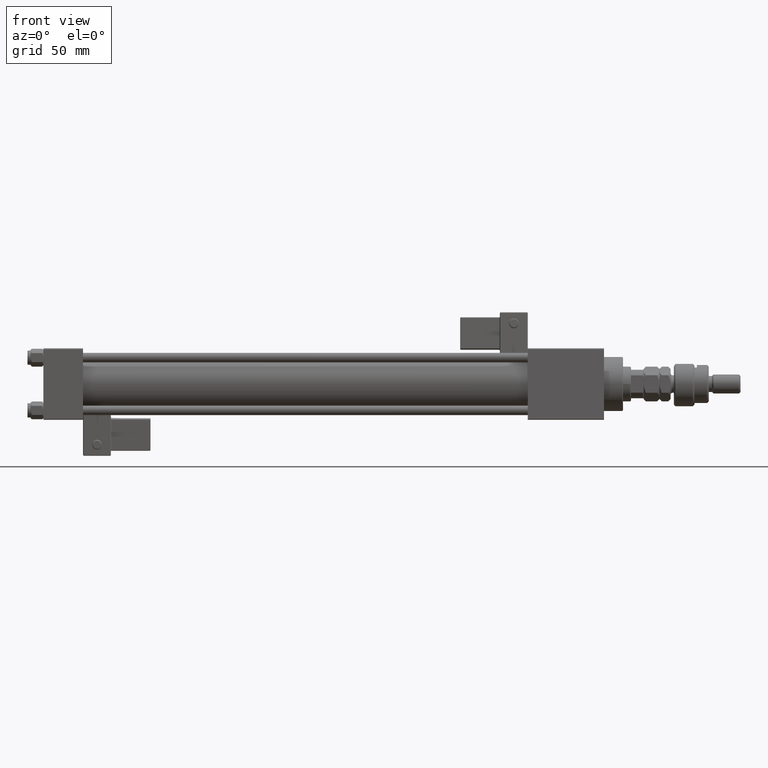
[diagram: clean part render]
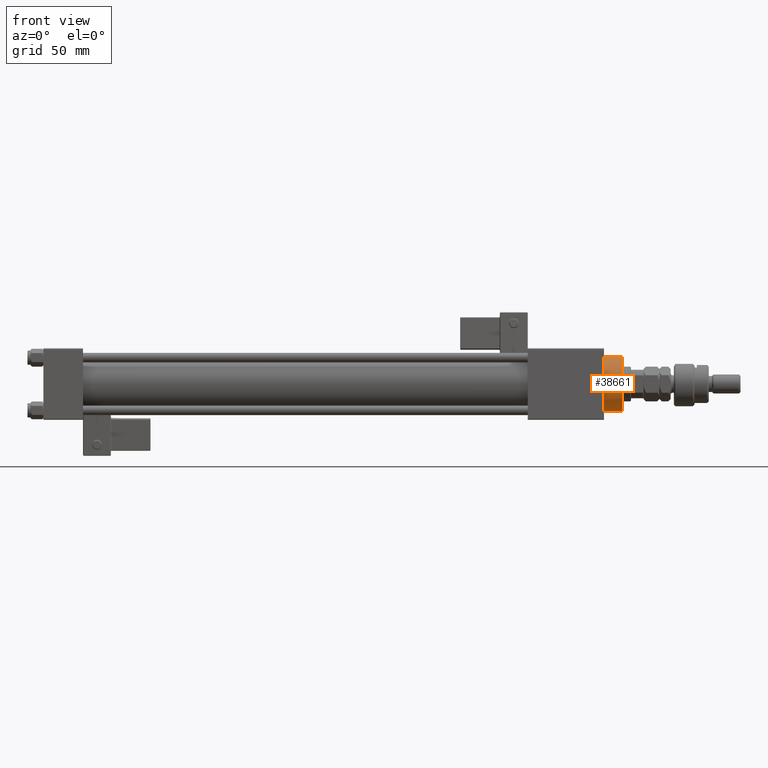
[diagram: same view with one face highlighted and labeled with its STEP entity id]
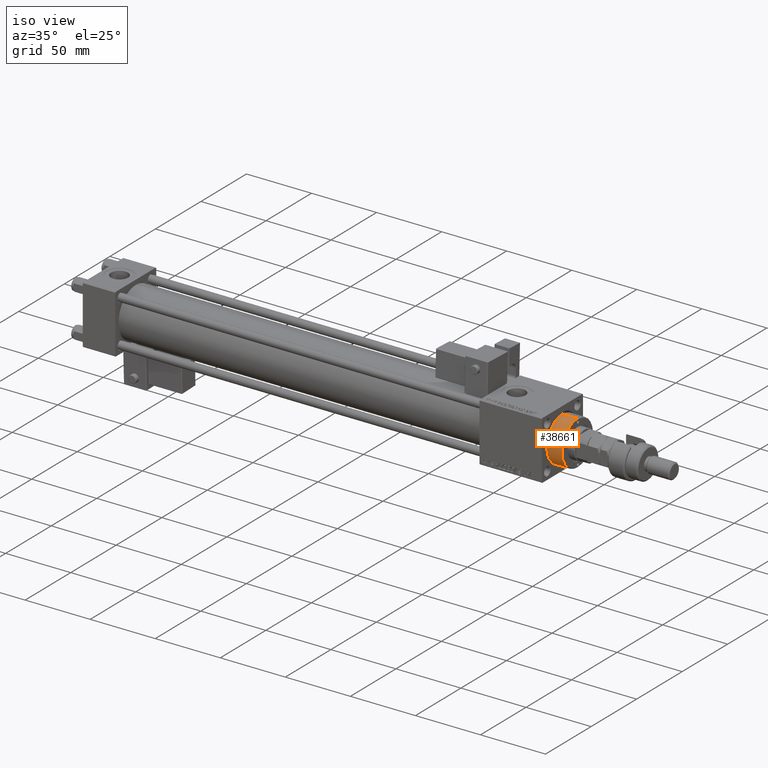
[diagram: same view with one face highlighted and labeled with its STEP entity id]
A machine part, front view. The second image highlights one B-rep face of the part: STEP entity #38661.
A second angle (iso view) of the same face is appended — the face is thin or edge-on in the first view.
In plain terms, the highlighted cylindrical surface (edge-blend (fillet) strip) has radius 17 mm, axis along (-1, -0, -0).
Its self-contained STEP definition (entity closure, byte-faithful):
#3739 = CARTESIAN_POINT ( 'NONE',  ( 17.00000000000000000, 2.081899558550500280E-15, 40.19999999999999574 ) ) ;
#7742 = CYLINDRICAL_SURFACE ( 'NONE', #52419, 17.00000000000000000 ) ;
#9080 = EDGE_CURVE ( 'NONE', #50881, #14703, #12870, .T. ) ;
#9559 = ORIENTED_EDGE ( 'NONE', *, *, #43229, .T. ) ;
#10435 = EDGE_CURVE ( 'NONE', #35818, #14703, #13530, .T. ) ;
#10925 = CARTESIAN_POINT ( 'NONE',  ( 17.00000000000000000, 2.081899558550500280E-15, 28.69999999999999929 ) ) ;
#11396 = DIRECTION ( 'NONE',  ( -0.000000000000000000, -0.000000000000000000, -1.000000000000000000 ) ) ;
#11662 = VECTOR ( 'NONE', #29111, 1000.000000000000000 ) ;
#12870 = LINE ( 'NONE', #34418, #11662 ) ;
#13143 = EDGE_CURVE ( 'NONE', #50881, #46358, #29669, .T. ) ;
#13244 = CARTESIAN_POINT ( 'NONE',  ( 0.000000000000000000, 0.000000000000000000, 28.69999999999999929 ) ) ;
#13530 = CIRCLE ( 'NONE', #16219, 17.00000000000000000 ) ;
#13584 = ORIENTED_EDGE ( 'NONE', *, *, #9080, .F. ) ;
#14703 = VERTEX_POINT ( 'NONE', #10925 ) ;
#16219 = AXIS2_PLACEMENT_3D ( 'NONE', #13244, #25840, #17170 ) ;
#17170 = DIRECTION ( 'NONE',  ( 1.000000000000000000, 0.000000000000000000, 0.000000000000000000 ) ) ;
#19856 = AXIS2_PLACEMENT_3D ( 'NONE', #48789, #27452, #23266 ) ;
#20352 = VECTOR ( 'NONE', #37974, 1000.000000000000000 ) ;
#20629 = DIRECTION ( 'NONE',  ( -1.000000000000000000, 0.000000000000000000, 0.000000000000000000 ) ) ;
#23266 = DIRECTION ( 'NONE',  ( 1.000000000000000000, 0.000000000000000000, 0.000000000000000000 ) ) ;
#25840 = DIRECTION ( 'NONE',  ( 0.000000000000000000, 0.000000000000000000, 1.000000000000000000 ) ) ;
#26448 = EDGE_LOOP ( 'NONE', ( #13584, #49375, #9559, #51630 ) ) ;
#27452 = DIRECTION ( 'NONE',  ( 0.000000000000000000, 0.000000000000000000, -1.000000000000000000 ) ) ;
#29111 = DIRECTION ( 'NONE',  ( -0.000000000000000000, -0.000000000000000000, -1.000000000000000000 ) ) ;
#29271 = LINE ( 'NONE', #50616, #20352 ) ;
#29656 = CARTESIAN_POINT ( 'NONE',  ( -17.00000000000000000, 0.000000000000000000, 40.19999999999999574 ) ) ;
#29669 = CIRCLE ( 'NONE', #19856, 17.00000000000000000 ) ;
#31798 = CARTESIAN_POINT ( 'NONE',  ( -17.00000000000000000, 0.000000000000000000, 28.69999999999999929 ) ) ;
#33760 = CARTESIAN_POINT ( 'NONE',  ( 0.000000000000000000, 0.000000000000000000, 40.70000000000000284 ) ) ;
#34418 = CARTESIAN_POINT ( 'NONE',  ( 17.00000000000000000, 2.081899558550500280E-15, 40.70000000000000284 ) ) ;
#35818 = VERTEX_POINT ( 'NONE', #31798 ) ;
#37974 = DIRECTION ( 'NONE',  ( -0.000000000000000000, -0.000000000000000000, -1.000000000000000000 ) ) ;
#38661 = ADVANCED_FACE ( 'NONE', ( #41382 ), #7742, .T. ) ;
#41382 = FACE_OUTER_BOUND ( 'NONE', #26448, .T. ) ;
#43229 = EDGE_CURVE ( 'NONE', #46358, #35818, #29271, .T. ) ;
#46358 = VERTEX_POINT ( 'NONE', #29656 ) ;
#48789 = CARTESIAN_POINT ( 'NONE',  ( 0.000000000000000000, 0.000000000000000000, 40.19999999999999574 ) ) ;
#49375 = ORIENTED_EDGE ( 'NONE', *, *, #13143, .T. ) ;
#50616 = CARTESIAN_POINT ( 'NONE',  ( -17.00000000000000000, 0.000000000000000000, 40.70000000000000284 ) ) ;
#50881 = VERTEX_POINT ( 'NONE', #3739 ) ;
#51630 = ORIENTED_EDGE ( 'NONE', *, *, #10435, .T. ) ;
#52419 = AXIS2_PLACEMENT_3D ( 'NONE', #33760, #11396, #20629 ) ;